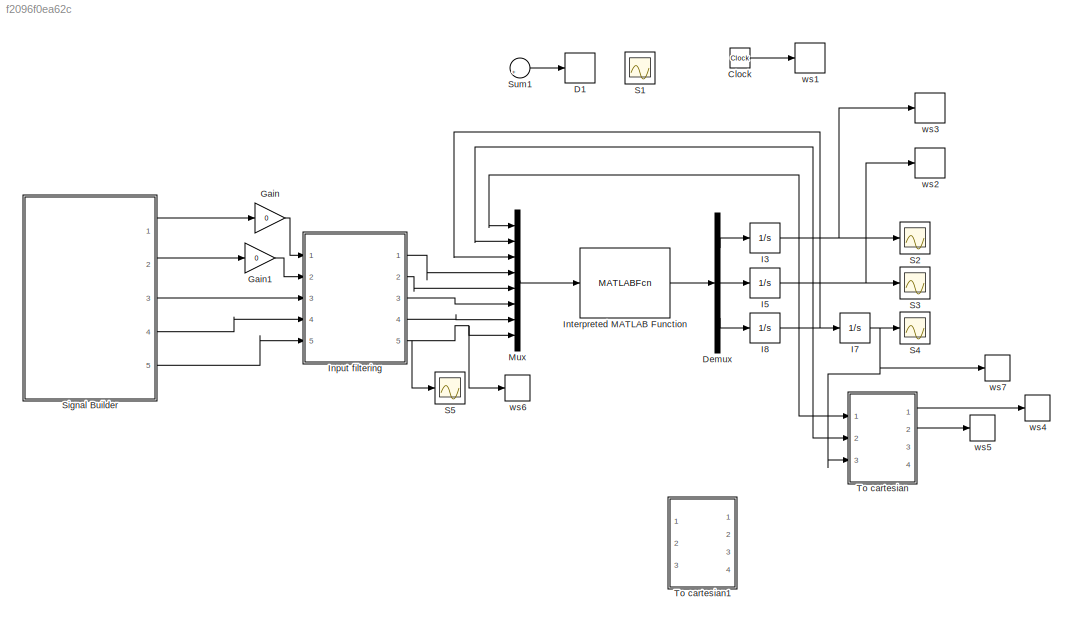
MODEL slx_f2096f0ea62c
KIND model
BLOCK [Clock] Clock
BLOCK [Derivative] D1
  Commented = on
BLOCK [Demux] Demux
  DisplayOption = bar
  Outputs = 3
  Ports = [1, 3]
BLOCK [Gain] Gain
  Gain = 0
  OutDataTypeStr = Inherit: Inherit via internal rule
  ParamDataTypeStr = Inherit: Inherit via internal rule
  SaturateOnIntegerOverflow = off
BLOCK [Gain] Gain1
  Gain = 0
  OutDataTypeStr = Inherit: Inherit via internal rule
  ParamDataTypeStr = Inherit: Inherit via internal rule
  SaturateOnIntegerOverflow = off
BLOCK [Integrator] I3
  InitialCondition = 10
  Ports = [1, 1]
BLOCK [Integrator] I5
  Ports = [1, 1]
BLOCK [Integrator] I7
  Ports = [1, 1]
BLOCK [Integrator] I8
  Ports = [1, 1]
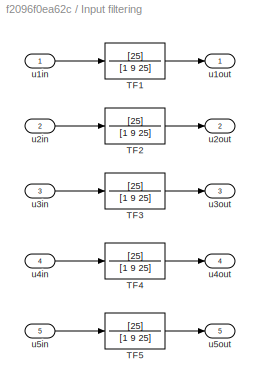
BLOCK [SubSystem] Input filtering
  Ports = [5, 5]
  RequestExecContextInheritance = off
BLOCK [TransferFcn] Input filtering/TF1
  Denominator = [1  9 25]
  Numerator = [25]
BLOCK [TransferFcn] Input filtering/TF2
  Denominator = [1  9 25]
  Numerator = [25]
BLOCK [TransferFcn] Input filtering/TF3
  Denominator = [1  9 25]
  Numerator = [25]
BLOCK [TransferFcn] Input filtering/TF4
  Denominator = [1  9 25]
  Numerator = [25]
BLOCK [TransferFcn] Input filtering/TF5
  Denominator = [1  9 25]
  Numerator = [25]
BLOCK [Inport] Input filtering/u1in
  IconDisplay = Port number
BLOCK [Outport] Input filtering/u1out
  IconDisplay = Port number
BLOCK [Inport] Input filtering/u2in
  IconDisplay = Port number
  Port = 2
BLOCK [Outport] Input filtering/u2out
  IconDisplay = Port number
  Port = 2
BLOCK [Inport] Input filtering/u3in
  IconDisplay = Port number
  Port = 3
BLOCK [Outport] Input filtering/u3out
  IconDisplay = Port number
  Port = 3
BLOCK [Inport] Input filtering/u4in
  IconDisplay = Port number
  Port = 4
BLOCK [Outport] Input filtering/u4out
  IconDisplay = Port number
  Port = 4
BLOCK [Inport] Input filtering/u5in
  IconDisplay = Port number
  Port = 5
BLOCK [Outport] Input filtering/u5out
  IconDisplay = Port number
  Port = 5
BLOCK [MATLABFcn] Interpreted MATLAB Function
  MATLABFcn = vehdyn
  Ports = [1, 1]
BLOCK [Mux] Mux
  DisplayOption = bar
  Inputs = 8
  Ports = [8, 1]
BLOCK [Scope] S1
  Commented = on
  Floating = off
  NumInputPorts = 1
  Ports = [1]
  ShowLegends = off
BLOCK [Scope] S2
  Floating = off
  LimitDataPoints = off
  NumInputPorts = 1
  Ports = [1]
  SaveName = ScopeData1
  ShowLegends = off
  YMax = 1.00002
  YMin = 1
BLOCK [Scope] S3
  Floating = off
  LimitDataPoints = off
  NumInputPorts = 1
  Ports = [1]
  SaveName = ScopeData2
  ShowLegends = off
  YMax = 3.5
  YMin = 1
BLOCK [Scope] S4
  Floating = off
  LimitDataPoints = off
  NumInputPorts = 1
  Ports = [1]
  SaveName = ScopeData3
  ShowLegends = off
  YMax = 1e-06
  YMin = -4e-06
BLOCK [Scope] S5
  Floating = off
  LimitDataPoints = off
  NumInputPorts = 1
  Ports = [1]
  SaveName = ScopeData4
  ShowLegends = off
  YMax = 1.00002
  YMin = 1
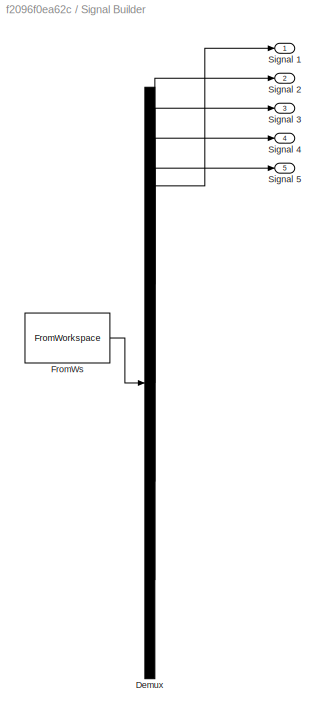
BLOCK [SubSystem] Signal Builder
  ClipboardFcn = sigbuilder_block('clipboard');
  CloseFcn = sigbuilder_block('close');
  ContinueFcn = sigbuilder_block('continue');
  CopyFcn = sigbuilder_block('copy');
  DeleteFcn = sigbuilder_block('delete');
  LoadFcn = sigbuilder_block('load');
  MaskHideContents = on
  ModelCloseFcn = sigbuilder_block('modelClose');
  NameChangeFcn = sigbuilder_block('namechange');
  OpenFcn = sigbuilder_block('open',[437.6 199.2 550.4 400 ]);
  PauseFcn = sigbuilder_block('pause');
  Ports = [0, 5]
  PreSaveFcn = sigbuilder_block('preSave');
  RequestExecContextInheritance = off
  StartFcn = sigbuilder_block('start');
  StopFcn = sigbuilder_block('stop');
  Tag = STV Subsys
BLOCK [Demux] Signal Builder/Demux
  Outputs = 5
  Ports = [1, 5]
  Tag = STV Demux
BLOCK [FromWorkspace] Signal Builder/FromWs
  SampleTime = 0
  Tag = STV FromWs
  VariableName = tuvar
  ZeroCross = on
BLOCK [Outport] Signal Builder/Signal 1
  IconDisplay = Port number
  Tag = STV Outport
BLOCK [Outport] Signal Builder/Signal 2
  IconDisplay = Port number
  Port = 2
  Tag = STV Outport
BLOCK [Outport] Signal Builder/Signal 3
  IconDisplay = Port number
  Port = 3
  Tag = STV Outport
BLOCK [Outport] Signal Builder/Signal 4
  IconDisplay = Port number
  Port = 4
  Tag = STV Outport
BLOCK [Outport] Signal Builder/Signal 5
  IconDisplay = Port number
  Port = 5
  Tag = STV Outport
BLOCK [Sum] Sum1
  Commented = on
  IconShape = round
  InputSameDT = off
  Inputs = |++
  OutDataTypeStr = Inherit: Inherit via internal rule
  Ports = [2, 1]
  SaturateOnIntegerOverflow = off
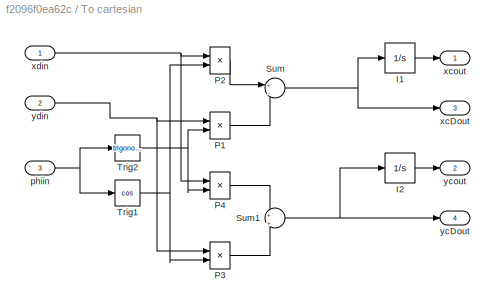
BLOCK [SubSystem] To cartesian
  Ports = [3, 4]
  RequestExecContextInheritance = off
BLOCK [Integrator] To cartesian/I1
  InitialCondition = 1
  Ports = [1, 1]
BLOCK [Integrator] To cartesian/I2
  InitialCondition = 1
  Ports = [1, 1]
BLOCK [Product] To cartesian/P1
  InputSameDT = off
  OutDataTypeStr = Inherit: Inherit via internal rule
  Ports = [2, 1]
  RndMeth = Floor
  SaturateOnIntegerOverflow = off
BLOCK [Product] To cartesian/P2
  InputSameDT = off
  OutDataTypeStr = Inherit: Inherit via internal rule
  Ports = [2, 1]
  RndMeth = Floor
  SaturateOnIntegerOverflow = off
BLOCK [Product] To cartesian/P3
  InputSameDT = off
  OutDataTypeStr = Inherit: Inherit via internal rule
  Ports = [2, 1]
  RndMeth = Floor
  SaturateOnIntegerOverflow = off
BLOCK [Product] To cartesian/P4
  InputSameDT = off
  OutDataTypeStr = Inherit: Inherit via internal rule
  Ports = [2, 1]
  RndMeth = Floor
  SaturateOnIntegerOverflow = off
BLOCK [Sum] To cartesian/Sum
  IconShape = round
  InputSameDT = off
  Inputs = +|-
  OutDataTypeStr = Inherit: Inherit via internal rule
  Ports = [2, 1]
  SaturateOnIntegerOverflow = off
BLOCK [Sum] To cartesian/Sum1
  IconShape = round
  InputSameDT = off
  Inputs = +|+
  OutDataTypeStr = Inherit: Inherit via internal rule
  Ports = [2, 1]
  SaturateOnIntegerOverflow = off
BLOCK [Trigonometry] To cartesian/Trig1
  Operator = cos
  Ports = [1, 1]
BLOCK [Trigonometry] To cartesian/Trig2
  Ports = [1, 1]
BLOCK [Inport] To cartesian/phiin
  IconDisplay = Port number
  Port = 3
BLOCK [Outport] To cartesian/xcDout
  IconDisplay = Port number
  Port = 3
BLOCK [Outport] To cartesian/xcout
  IconDisplay = Port number
BLOCK [Inport] To cartesian/xdin
  IconDisplay = Port number
BLOCK [Outport] To cartesian/ycDout
  IconDisplay = Port number
  Port = 4
BLOCK [Outport] To cartesian/ycout
  IconDisplay = Port number
  Port = 2
BLOCK [Inport] To cartesian/ydin
  IconDisplay = Port number
  Port = 2
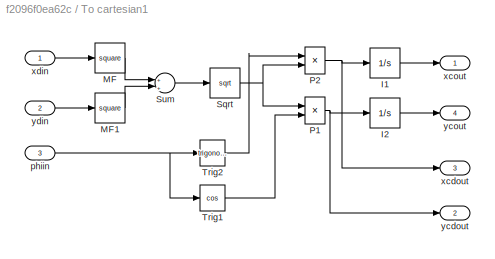
BLOCK [SubSystem] To cartesian1
  Commented = on
  Ports = [3, 4]
  RequestExecContextInheritance = off
BLOCK [Integrator] To cartesian1/I1
  InitialCondition = 1
  Ports = [1, 1]
BLOCK [Integrator] To cartesian1/I2
  InitialCondition = 1
  Ports = [1, 1]
BLOCK [Math] To cartesian1/MF
  Operator = square
  Ports = [1, 1]
BLOCK [Math] To cartesian1/MF1
  Operator = square
  Ports = [1, 1]
BLOCK [Product] To cartesian1/P1
  InputSameDT = off
  OutDataTypeStr = Inherit: Inherit via internal rule
  Ports = [2, 1]
  RndMeth = Floor
  SaturateOnIntegerOverflow = off
BLOCK [Product] To cartesian1/P2
  InputSameDT = off
  OutDataTypeStr = Inherit: Inherit via internal rule
  Ports = [2, 1]
  RndMeth = Floor
  SaturateOnIntegerOverflow = off
BLOCK [Sqrt] To cartesian1/Sqrt
BLOCK [Sum] To cartesian1/Sum
  IconShape = round
  InputSameDT = off
  Inputs = +|+
  OutDataTypeStr = Inherit: Inherit via internal rule
  Ports = [2, 1]
  SaturateOnIntegerOverflow = off
BLOCK [Trigonometry] To cartesian1/Trig1
  Operator = cos
  Ports = [1, 1]
BLOCK [Trigonometry] To cartesian1/Trig2
  Ports = [1, 1]
BLOCK [Inport] To cartesian1/phiin
  IconDisplay = Port number
  Port = 3
BLOCK [Outport] To cartesian1/xcdout
  IconDisplay = Port number
  Port = 3
BLOCK [Outport] To cartesian1/xcout
  IconDisplay = Port number
BLOCK [Inport] To cartesian1/xdin
  IconDisplay = Port number
BLOCK [Outport] To cartesian1/ycdout
  IconDisplay = Port number
  Port = 2
BLOCK [Outport] To cartesian1/ycout
  IconDisplay = Port number
  Port = 4
BLOCK [Inport] To cartesian1/ydin
  IconDisplay = Port number
  Port = 2
BLOCK [ToWorkspace] ws1
  FixptAsFi = on
  MaxDataPoints = inf
  Ports = [1]
  SampleTime = -1
  Save2DSignal = 3-D array (concatenate along third dimension)
  VariableName = t
BLOCK [ToWorkspace] ws2
  FixptAsFi = on
  MaxDataPoints = inf
  Ports = [1]
  SampleTime = -1
  Save2DSignal = 3-D array (concatenate along third dimension)
  VariableName = y
BLOCK [ToWorkspace] ws3
  FixptAsFi = on
  MaxDataPoints = inf
  Ports = [1]
  SampleTime = -1
  Save2DSignal = 3-D array (concatenate along third dimension)
  VariableName = x
BLOCK [ToWorkspace] ws4
  FixptAsFi = on
  MaxDataPoints = inf
  Ports = [1]
  SampleTime = -1
  Save2DSignal = 3-D array (concatenate along third dimension)
  VariableName = xc
BLOCK [ToWorkspace] ws5
  FixptAsFi = on
  MaxDataPoints = inf
  Ports = [1]
  SampleTime = -1
  Save2DSignal = 3-D array (concatenate along third dimension)
  VariableName = yc
BLOCK [ToWorkspace] ws6
  FixptAsFi = on
  MaxDataPoints = inf
  Ports = [1]
  SampleTime = -1
  Save2DSignal = 3-D array (concatenate along third dimension)
  VariableName = delta
BLOCK [ToWorkspace] ws7
  FixptAsFi = on
  MaxDataPoints = inf
  Ports = [1]
  SampleTime = -1
  Save2DSignal = 3-D array (concatenate along third dimension)
  VariableName = phi
LINE Clock:1 -> ws1:1
LINE Demux:1 -> I3:1
LINE Demux:2 -> I5:1
LINE Demux:3 -> I8:1
LINE Gain1:1 -> Input filtering:2
LINE Gain:1 -> Input filtering:1
NET I3:1 -> Mux:1, S2:1, To cartesian:1, ws3:1
NET I5:1 -> Mux:2, S3:1, To cartesian:2, ws2:1
NET I7:1 -> S4:1, To cartesian:3, ws7:1
NET I8:1 -> I7:1, Mux:3
LINE Input filtering/TF1:1 -> Input filtering/u1out:1
LINE Input filtering/TF2:1 -> Input filtering/u2out:1
LINE Input filtering/TF3:1 -> Input filtering/u3out:1
LINE Input filtering/TF4:1 -> Input filtering/u4out:1
LINE Input filtering/TF5:1 -> Input filtering/u5out:1
LINE Input filtering/u1in:1 -> Input filtering/TF1:1
LINE Input filtering/u2in:1 -> Input filtering/TF2:1
LINE Input filtering/u3in:1 -> Input filtering/TF3:1
LINE Input filtering/u4in:1 -> Input filtering/TF4:1
LINE Input filtering/u5in:1 -> Input filtering/TF5:1
LINE Input filtering:1 -> Mux:4
LINE Input filtering:2 -> Mux:5
LINE Input filtering:3 -> Mux:6
LINE Input filtering:4 -> Mux:7
NET Input filtering:5 -> Mux:8, S5:1, ws6:1
LINE Interpreted MATLAB Function:1 -> Demux:1
LINE Mux:1 -> Interpreted MATLAB Function:1
LINE Signal Builder:1 -> Gain:1
LINE Signal Builder:2 -> Gain1:1
LINE Signal Builder:3 -> Input filtering:3
LINE Signal Builder:4 -> Input filtering:4
LINE Signal Builder:5 -> Input filtering:5
LINE Sum1:1 -> D1:1
LINE To cartesian/I1:1 -> To cartesian/xcout:1
LINE To cartesian/I2:1 -> To cartesian/ycout:1
LINE To cartesian/P1:1 -> To cartesian/Sum:2
LINE To cartesian/P2:1 -> To cartesian/Sum:1
LINE To cartesian/P3:1 -> To cartesian/Sum1:2
LINE To cartesian/P4:1 -> To cartesian/Sum1:1
NET To cartesian/Sum1:1 -> To cartesian/I2:1, To cartesian/ycDout:1
NET To cartesian/Sum:1 -> To cartesian/I1:1, To cartesian/xcDout:1
NET To cartesian/Trig1:1 -> To cartesian/P2:2, To cartesian/P3:2
NET To cartesian/Trig2:1 -> To cartesian/P1:2, To cartesian/P4:2
NET To cartesian/phiin:1 -> To cartesian/Trig1:1, To cartesian/Trig2:1
NET To cartesian/xdin:1 -> To cartesian/P2:1, To cartesian/P4:1
NET To cartesian/ydin:1 -> To cartesian/P1:1, To cartesian/P3:1
LINE To cartesian1/I1:1 -> To cartesian1/xcout:1
LINE To cartesian1/I2:1 -> To cartesian1/ycout:1
LINE To cartesian1/MF1:1 -> To cartesian1/Sum:2
LINE To cartesian1/MF:1 -> To cartesian1/Sum:1
NET To cartesian1/P1:1 -> To cartesian1/I2:1, To cartesian1/ycdout:1
NET To cartesian1/P2:1 -> To cartesian1/I1:1, To cartesian1/xcdout:1
NET To cartesian1/Sqrt:1 -> To cartesian1/P1:1, To cartesian1/P2:2
LINE To cartesian1/Sum:1 -> To cartesian1/Sqrt:1
LINE To cartesian1/Trig1:1 -> To cartesian1/P1:2
LINE To cartesian1/Trig2:1 -> To cartesian1/P2:1
NET To cartesian1/phiin:1 -> To cartesian1/Trig1:1, To cartesian1/Trig2:1
LINE To cartesian1/xdin:1 -> To cartesian1/MF:1
LINE To cartesian1/ydin:1 -> To cartesian1/MF1:1
LINE To cartesian:1 -> ws4:1
LINE To cartesian:2 -> ws5:1
note: NET lines group one-source signal fan-out (src -> all destinations, sorted); 1:1 wires keep LINE
